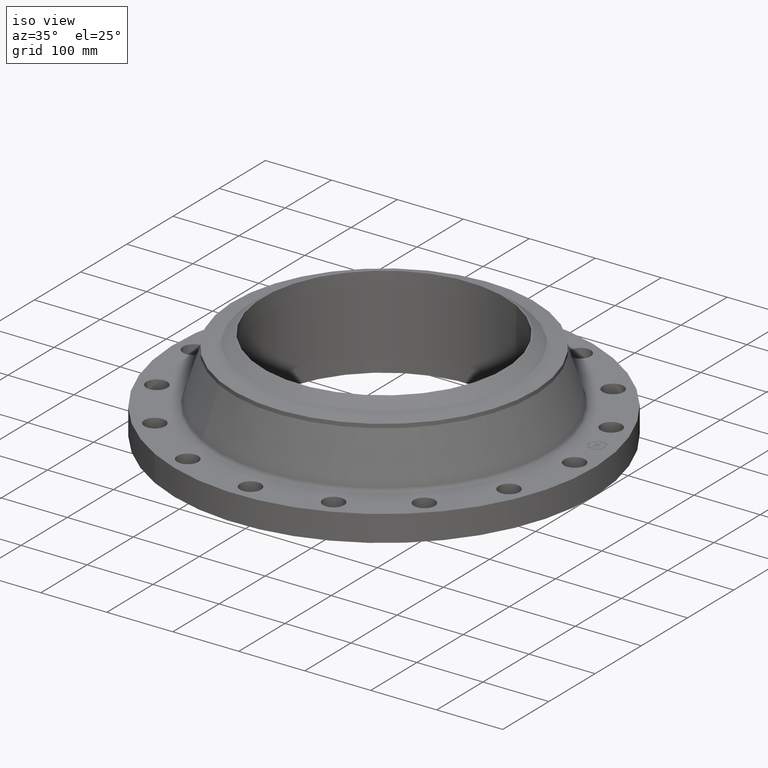
[diagram: clean part render]
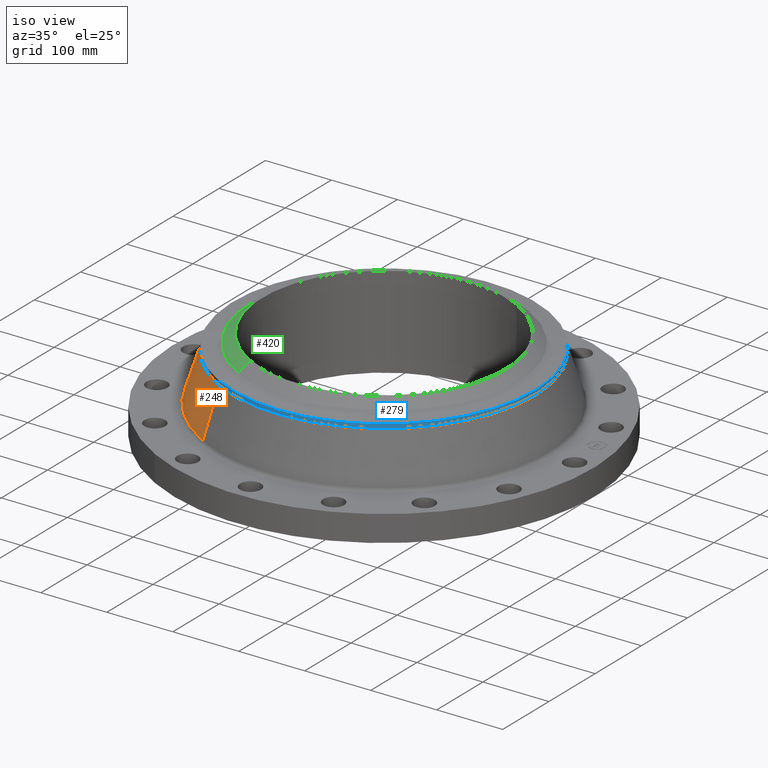
[diagram: same view with three faces highlighted in distinct colors, each labeled with its STEP entity id]
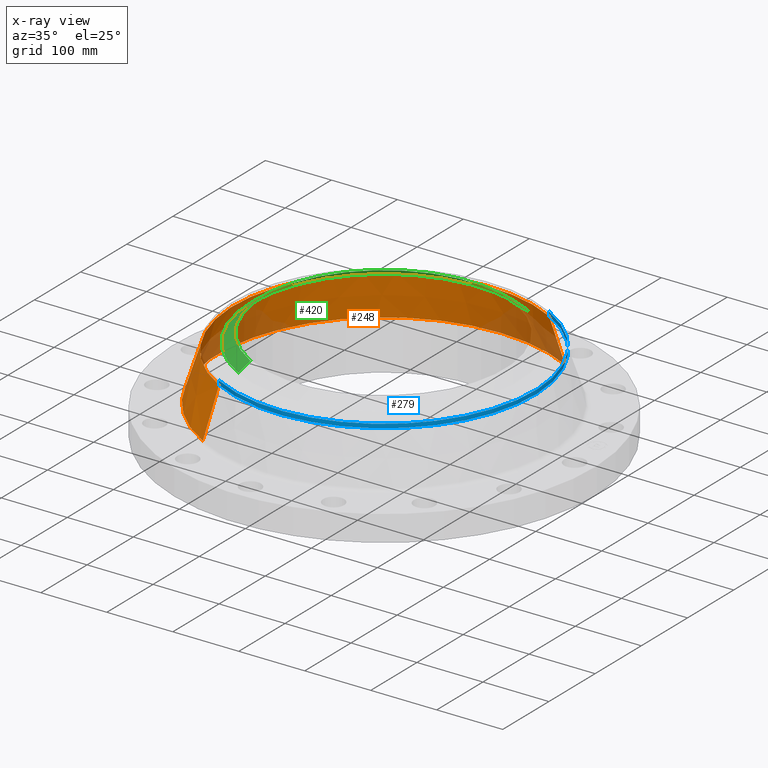
[diagram: x-ray of the same camera — body ghosted, the three highlighted faces saturated]
A machine part, iso view with three faces highlighted in distinct colors.
The next image is the same camera in x-ray (body ghosted, the three faces saturated) — at least one of them is partly hidden behind the body in this view.
Their STEP definitions:

[orange] entity #248 — the highlighted conical surface has half-angle 17.428 deg.
#196=AXIS2_PLACEMENT_3D('Circle Axis2P3D',#194,#195,$) ;
#209=AXIS2_PLACEMENT_3D('Cone Axis2P3D',#206,#207,#208) ;
#239=AXIS2_PLACEMENT_3D('Circle Axis2P3D',#237,#238,$) ;
#167=CARTESIAN_POINT('Vertex',(4.7391339582,8.67492652204,1.73512401089)) ;
#174=CARTESIAN_POINT('Vertex',(-4.7391339582,-8.67492652204,1.73512401089)) ;
#194=CARTESIAN_POINT('Axis2P3D Location',(0.,0.,1.73512401089)) ;
#206=CARTESIAN_POINT('Axis2P3D Location',(0.,0.,4.55444910623)) ;
#211=CARTESIAN_POINT('Line Origine',(4.52698190283,8.28658478954,3.14478655856)) ;
#215=CARTESIAN_POINT('Vertex',(4.31482984746,7.89824305704,4.55444910623)) ;
#222=CARTESIAN_POINT('Vertex',(-4.31482984746,-7.89824305704,4.55444910623)) ;
#225=CARTESIAN_POINT('Line Origine',(-4.52698190283,-8.28658478954,3.14478655856)) ;
#237=CARTESIAN_POINT('Axis2P3D Location',(0.,0.,4.55444910623)) ;
#195=DIRECTION('Axis2P3D Direction',(0.,0.,-0.0393700787402)) ;
#207=DIRECTION('Axis2P3D Direction',(0.,0.,-0.0393700787402)) ;
#208=DIRECTION('Axis2P3D XDirection',(-0.0188750212049,-0.0345504945626,0.)) ;
#212=DIRECTION('Vector Direction',(0.00565314352896,0.0103480098188,-0.0375627975667)) ;
#226=DIRECTION('Vector Direction',(-0.00565314352896,-0.0103480098188,-0.0375627975667)) ;
#238=DIRECTION('Axis2P3D Direction',(0.,0.,-0.0393700787402)) ;
#213=VECTOR('Line Direction',#212,0.0393700787402) ;
#227=VECTOR('Line Direction',#226,0.0393700787402) ;
#243=ORIENTED_EDGE('',*,*,#198,.F.) ;
#244=ORIENTED_EDGE('',*,*,#229,.T.) ;
#245=ORIENTED_EDGE('',*,*,#241,.T.) ;
#246=ORIENTED_EDGE('',*,*,#217,.F.) ;
#248=ADVANCED_FACE('PartBody',(#247),#210,.T.) ;
#197=CIRCLE('generated circle',#196,9.88502609185) ;
#240=CIRCLE('generated circle',#239,9.00000000004) ;
#210=CONICAL_SURFACE('Cone',#209,9.00000000004,0.304172701572) ;
#198=EDGE_CURVE('',#175,#168,#197,.T.) ;
#217=EDGE_CURVE('',#168,#216,#214,.F.) ;
#229=EDGE_CURVE('',#175,#223,#228,.F.) ;
#241=EDGE_CURVE('',#223,#216,#240,.T.) ;
#242=EDGE_LOOP('',(#243,#244,#245,#246)) ;
#247=FACE_OUTER_BOUND('',#242,.T.) ;
#214=LINE('Line',#211,#213) ;
#228=LINE('Line',#225,#227) ;
#168=VERTEX_POINT('',#167) ;
#175=VERTEX_POINT('',#174) ;
#216=VERTEX_POINT('',#215) ;
#223=VERTEX_POINT('',#222) ;

[blue] entity #279 — the highlighted cylindrical surface (partial cylindrical patch) has radius 228.6 mm, axis along (0, 0, -1).
#220=AXIS2_PLACEMENT_3D('Circle Axis2P3D',#218,#219,$) ;
#252=AXIS2_PLACEMENT_3D('Cylinder Axis2P3D',#249,#250,#251) ;
#270=AXIS2_PLACEMENT_3D('Circle Axis2P3D',#268,#269,$) ;
#215=CARTESIAN_POINT('Vertex',(4.31482984746,7.89824305704,4.55444910623)) ;
#218=CARTESIAN_POINT('Axis2P3D Location',(0.,0.,4.55444910623)) ;
#222=CARTESIAN_POINT('Vertex',(-4.31482984746,-7.89824305704,4.55444910623)) ;
#249=CARTESIAN_POINT('Axis2P3D Location',(0.,0.,2.80000000001)) ;
#254=CARTESIAN_POINT('Line Origine',(-4.31482984746,-7.89824305704,4.67255934245)) ;
#258=CARTESIAN_POINT('Vertex',(-4.31482984746,-7.89824305704,4.79066957867)) ;
#261=CARTESIAN_POINT('Line Origine',(4.31482984746,7.89824305704,4.67255934245)) ;
#265=CARTESIAN_POINT('Vertex',(4.31482984746,7.89824305704,4.79066957867)) ;
#268=CARTESIAN_POINT('Axis2P3D Location',(0.,0.,4.79066957867)) ;
#219=DIRECTION('Axis2P3D Direction',(0.,0.,-0.0393700787402)) ;
#250=DIRECTION('Axis2P3D Direction',(0.,0.,-0.0393700787402)) ;
#251=DIRECTION('Axis2P3D XDirection',(-0.0188750212049,-0.0345504945626,0.)) ;
#255=DIRECTION('Vector Direction',(0.,0.,-0.0393700787402)) ;
#262=DIRECTION('Vector Direction',(0.,0.,-0.0393700787402)) ;
#269=DIRECTION('Axis2P3D Direction',(0.,0.,-0.0393700787402)) ;
#256=VECTOR('Line Direction',#255,0.0393700787402) ;
#263=VECTOR('Line Direction',#262,0.0393700787402) ;
#274=ORIENTED_EDGE('',*,*,#260,.F.) ;
#275=ORIENTED_EDGE('',*,*,#224,.F.) ;
#276=ORIENTED_EDGE('',*,*,#267,.T.) ;
#277=ORIENTED_EDGE('',*,*,#272,.T.) ;
#279=ADVANCED_FACE('PartBody',(#278),#253,.T.) ;
#221=CIRCLE('generated circle',#220,9.00000000004) ;
#271=CIRCLE('generated circle',#270,9.00000000004) ;
#253=CYLINDRICAL_SURFACE('generated cylinder',#252,9.00000000004) ;
#224=EDGE_CURVE('',#216,#223,#221,.T.) ;
#260=EDGE_CURVE('',#223,#259,#257,.F.) ;
#267=EDGE_CURVE('',#216,#266,#264,.F.) ;
#272=EDGE_CURVE('',#266,#259,#271,.T.) ;
#273=EDGE_LOOP('',(#274,#275,#276,#277)) ;
#278=FACE_OUTER_BOUND('',#273,.T.) ;
#257=LINE('Line',#254,#256) ;
#264=LINE('Line',#261,#263) ;
#216=VERTEX_POINT('',#215) ;
#223=VERTEX_POINT('',#222) ;
#259=VERTEX_POINT('',#258) ;
#266=VERTEX_POINT('',#265) ;

[green] entity #420 — the highlighted conical surface has half-angle 52.5 deg.
#368=AXIS2_PLACEMENT_3D('Circle Axis2P3D',#366,#367,$) ;
#381=AXIS2_PLACEMENT_3D('Cone Axis2P3D',#378,#379,#380) ;
#411=AXIS2_PLACEMENT_3D('Circle Axis2P3D',#409,#410,$) ;
#344=CARTESIAN_POINT('Vertex',(-3.80890811771,-6.97215954259,4.99108306753)) ;
#351=CARTESIAN_POINT('Vertex',(3.80890811771,6.97215954259,4.99108306753)) ;
#366=CARTESIAN_POINT('Axis2P3D Location',(0.,0.,4.99108306753)) ;
#378=CARTESIAN_POINT('Axis2P3D Location',(0.,0.,5.50000000002)) ;
#383=CARTESIAN_POINT('Line Origine',(-3.64992258853,-6.68113848351,5.24554153378)) ;
#387=CARTESIAN_POINT('Vertex',(-3.49093705936,-6.39011742443,5.50000000002)) ;
#390=CARTESIAN_POINT('Line Origine',(3.64992258853,6.68113848351,5.24554153378)) ;
#394=CARTESIAN_POINT('Vertex',(3.49093705936,6.39011742443,5.50000000002)) ;
#409=CARTESIAN_POINT('Axis2P3D Location',(0.,0.,5.50000000002)) ;
#367=DIRECTION('Axis2P3D Direction',(0.,-0.,-0.0393700787402)) ;
#379=DIRECTION('Axis2P3D Direction',(-0.,-0.,-0.0393700787402)) ;
#380=DIRECTION('Axis2P3D XDirection',(-0.0188750212049,-0.0345504945626,0.)) ;
#384=DIRECTION('Vector Direction',(-0.014974561121,-0.02741075027,-0.023966985394)) ;
#391=DIRECTION('Vector Direction',(0.014974561121,0.02741075027,-0.023966985394)) ;
#410=DIRECTION('Axis2P3D Direction',(0.,-0.,-0.0393700787402)) ;
#385=VECTOR('Line Direction',#384,0.0393700787402) ;
#392=VECTOR('Line Direction',#391,0.0393700787402) ;
#415=ORIENTED_EDGE('',*,*,#396,.T.) ;
#416=ORIENTED_EDGE('',*,*,#370,.F.) ;
#417=ORIENTED_EDGE('',*,*,#389,.F.) ;
#418=ORIENTED_EDGE('',*,*,#413,.T.) ;
#420=ADVANCED_FACE('PartBody',(#419),#382,.T.) ;
#369=CIRCLE('generated circle',#368,7.94473345912) ;
#412=CIRCLE('generated circle',#411,7.28150000003) ;
#382=CONICAL_SURFACE('Cone',#381,7.28150000003,0.916297857297) ;
#370=EDGE_CURVE('',#345,#352,#369,.T.) ;
#389=EDGE_CURVE('',#388,#345,#386,.T.) ;
#396=EDGE_CURVE('',#395,#352,#393,.T.) ;
#413=EDGE_CURVE('',#388,#395,#412,.T.) ;
#414=EDGE_LOOP('',(#415,#416,#417,#418)) ;
#419=FACE_OUTER_BOUND('',#414,.T.) ;
#386=LINE('Line',#383,#385) ;
#393=LINE('Line',#390,#392) ;
#345=VERTEX_POINT('',#344) ;
#352=VERTEX_POINT('',#351) ;
#388=VERTEX_POINT('',#387) ;
#395=VERTEX_POINT('',#394) ;